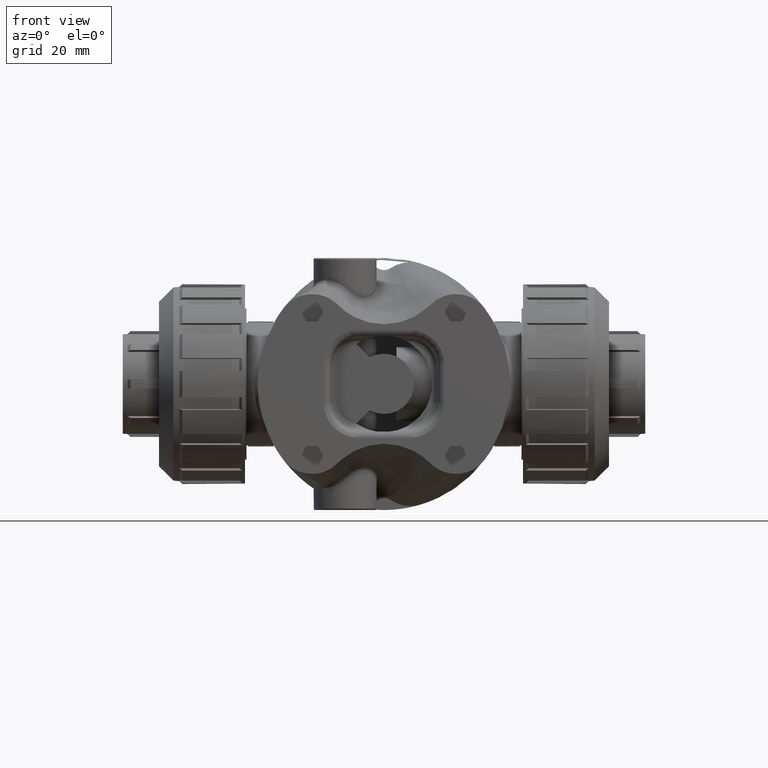
[diagram: clean part render]
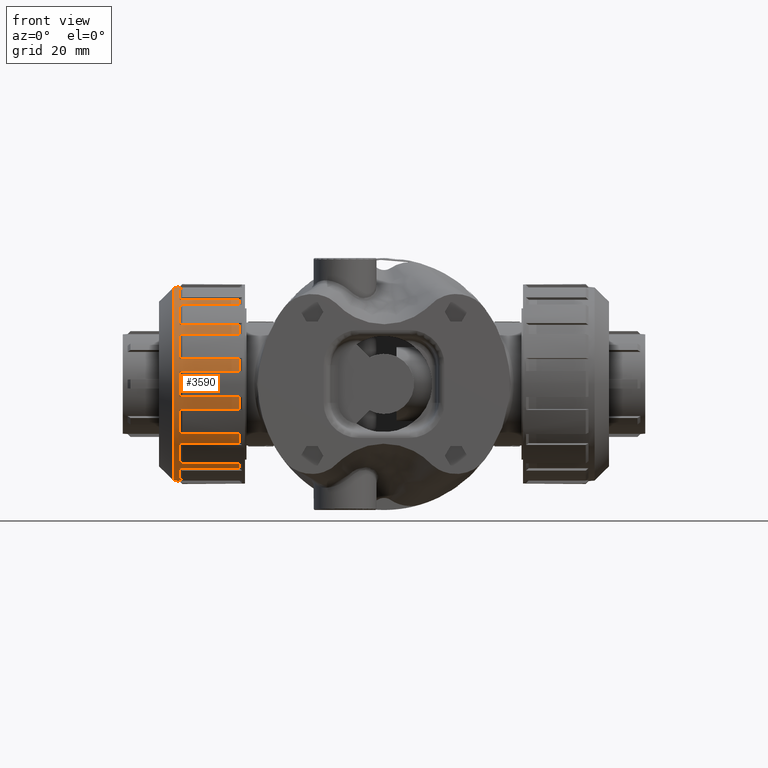
[diagram: same view with one face highlighted and labeled with its STEP entity id]
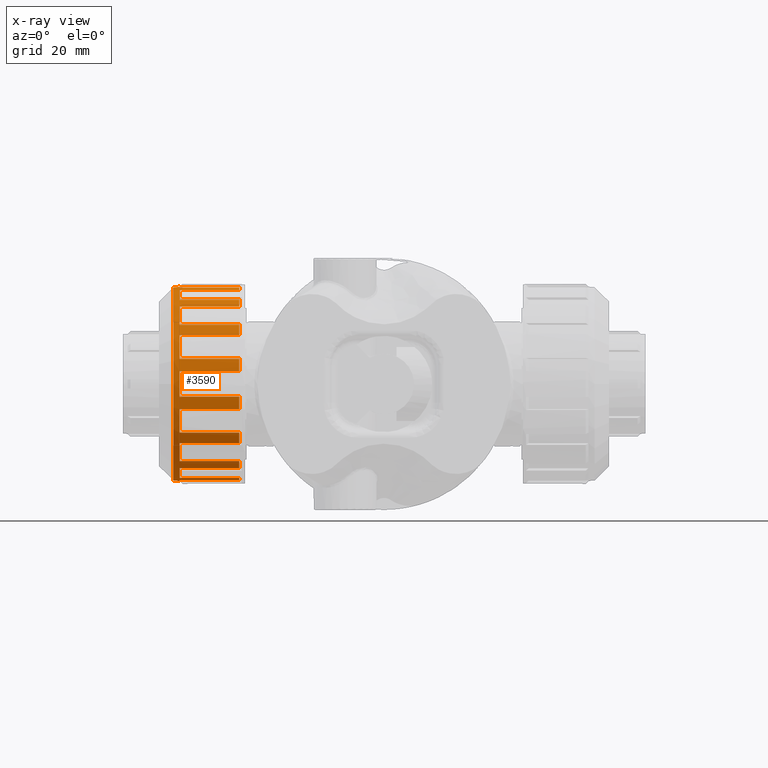
[diagram: x-ray of the same camera — body ghosted, the highlighted face saturated]
A machine part, front view. The second image highlights one B-rep face of the part: STEP entity #3590.
The next image is the same camera in x-ray: the body ghosted, the highlighted face saturated — about 0% of this face is hidden behind the body in this view.
In plain terms, the highlighted cylindrical surface (bore or boss wall) has radius 34.3154 mm, axis along (-1, -0, 0).
Its self-contained STEP definition (entity closure, byte-faithful):
#1392=CARTESIAN_POINT('',(-2.011169786684572,2.044500320512774,0.675332573794901));
#1393=VERTEX_POINT('',#1392);
#1408=CARTESIAN_POINT('',(-2.841169786684572,2.044500320512773,0.675332573794903));
#1409=VERTEX_POINT('',#1408);
#1416=CARTESIAN_POINT('',(-2.011169786684572,2.044500320512774,0.675332573794901));
#1417=DIRECTION('',(-1.0,0.0,0.0));
#1418=VECTOR('',#1417,0.830000000000000);
#1419=LINE('',#1416,#1418);
#1420=EDGE_CURVE('',#1393,#1409,#1419,.T.);
#1432=CARTESIAN_POINT('',(-2.841169786684572,2.179465791316530,0.349497103728409));
#1433=VERTEX_POINT('',#1432);
#1440=CARTESIAN_POINT('',(-2.841169786684572,0.874499999999999,-0.000167426205100));
#1441=DIRECTION('',(-1.0,0.0,0.0));
#1442=DIRECTION('',(0.0,1.0,0.0));
#1443=AXIS2_PLACEMENT_3D('',#1440,#1441,#1442);
#1444=CIRCLE('',#1443,1.351000000000000);
#1445=EDGE_CURVE('',#1409,#1433,#1444,.T.);
#1463=CARTESIAN_POINT('',(-2.011169786684572,2.179465791316530,0.349497103728407));
#1464=VERTEX_POINT('',#1463);
#1473=CARTESIAN_POINT('',(-2.841169786684572,2.179465791316530,0.349497103728409));
#1474=DIRECTION('',(1.0,0.0,0.0));
#1475=VECTOR('',#1474,0.830000000000000);
#1476=LINE('',#1473,#1475);
#1477=EDGE_CURVE('',#1433,#1464,#1476,.T.);
#1496=CARTESIAN_POINT('',(-2.011169786684570,1.696936690590777,1.071652936528360));
#1497=VERTEX_POINT('',#1496);
#1512=CARTESIAN_POINT('',(-2.841169786684570,1.696936690590777,1.071652936528362));
#1513=VERTEX_POINT('',#1512);
#1520=CARTESIAN_POINT('',(-2.011169786684570,1.696936690590778,1.071652936528359));
#1521=DIRECTION('',(-1.0,0.0,0.0));
#1522=VECTOR('',#1521,0.830000000000000);
#1523=LINE('',#1520,#1522);
#1524=EDGE_CURVE('',#1497,#1513,#1523,.T.);
#1536=CARTESIAN_POINT('',(-2.841169786684571,1.946320362733455,0.822269264385685));
#1537=VERTEX_POINT('',#1536);
#1544=CARTESIAN_POINT('',(-2.841169786684572,0.874499999999999,-0.000167426205100));
#1545=DIRECTION('',(-1.0,0.0,0.0));
#1546=DIRECTION('',(0.0,1.0,0.0));
#1547=AXIS2_PLACEMENT_3D('',#1544,#1545,#1546);
#1548=CIRCLE('',#1547,1.351000000000000);
#1549=EDGE_CURVE('',#1513,#1537,#1548,.T.);
#1567=CARTESIAN_POINT('',(-2.011169786684572,1.946320362733455,0.822269264385683));
#1568=VERTEX_POINT('',#1567);
#1577=CARTESIAN_POINT('',(-2.841169786684571,1.946320362733455,0.822269264385685));
#1578=DIRECTION('',(1.0,0.0,0.0));
#1579=VECTOR('',#1578,0.830000000000000);
#1580=LINE('',#1577,#1579);
#1581=EDGE_CURVE('',#1537,#1568,#1580,.T.);
#1600=CARTESIAN_POINT('',(-2.011169786684570,1.224164529933501,1.304798365111430));
#1601=VERTEX_POINT('',#1600);
#1616=CARTESIAN_POINT('',(-2.841169786684570,1.224164529933501,1.304798365111432));
#1617=VERTEX_POINT('',#1616);
#1624=CARTESIAN_POINT('',(-2.011169786684570,1.224164529933501,1.304798365111430));
#1625=DIRECTION('',(-1.0,0.0,0.0));
#1626=VECTOR('',#1625,0.830000000000000);
#1627=LINE('',#1624,#1626);
#1628=EDGE_CURVE('',#1601,#1617,#1627,.T.);
#1640=CARTESIAN_POINT('',(-2.841169786684570,1.549999999999995,1.169832894307679));
#1641=VERTEX_POINT('',#1640);
#1648=CARTESIAN_POINT('',(-2.841169786684572,0.874499999999999,-0.000167426205100));
#1649=DIRECTION('',(-1.0,0.0,0.0));
#1650=DIRECTION('',(0.0,1.0,0.0));
#1651=AXIS2_PLACEMENT_3D('',#1648,#1649,#1650);
#1652=CIRCLE('',#1651,1.351000000000000);
#1653=EDGE_CURVE('',#1617,#1641,#1652,.T.);
#1671=CARTESIAN_POINT('',(-2.011169786684570,1.549999999999996,1.169832894307676));
#1672=VERTEX_POINT('',#1671);
#1681=CARTESIAN_POINT('',(-2.841169786684570,1.549999999999995,1.169832894307678));
#1682=DIRECTION('',(1.0,0.0,0.0));
#1683=VECTOR('',#1682,0.830000000000000);
#1684=LINE('',#1681,#1683);
#1685=EDGE_CURVE('',#1641,#1672,#1684,.T.);
#1704=CARTESIAN_POINT('',(-2.011169786684570,0.698159114310705,1.339274581510915));
#1705=VERTEX_POINT('',#1704);
#1720=CARTESIAN_POINT('',(-2.841169786684570,0.698159114310705,1.339274581510917));
#1721=VERTEX_POINT('',#1720);
#1728=CARTESIAN_POINT('',(-2.011169786684570,0.698159114310705,1.339274581510915));
#1729=DIRECTION('',(-1.0,0.0,0.0));
#1730=VECTOR('',#1729,0.830000000000000);
#1731=LINE('',#1728,#1730);
#1732=EDGE_CURVE('',#1705,#1721,#1731,.T.);
#1744=CARTESIAN_POINT('',(-2.841169786684570,1.050840885689284,1.339274581510918));
#1745=VERTEX_POINT('',#1744);
#1752=CARTESIAN_POINT('',(-2.841169786684572,0.874499999999999,-0.000167426205100));
#1753=DIRECTION('',(-1.0,0.0,0.0));
#1754=DIRECTION('',(0.0,1.0,0.0));
#1755=AXIS2_PLACEMENT_3D('',#1752,#1753,#1754);
#1756=CIRCLE('',#1755,1.351000000000000);
#1757=EDGE_CURVE('',#1721,#1745,#1756,.T.);
#1775=CARTESIAN_POINT('',(-2.011169786684570,1.050840885689284,1.339274581510916));
#1776=VERTEX_POINT('',#1775);
#1785=CARTESIAN_POINT('',(-2.841169786684570,1.050840885689284,1.339274581510918));
#1786=DIRECTION('',(1.0,0.0,0.0));
#1787=VECTOR('',#1786,0.830000000000000);
#1788=LINE('',#1785,#1787);
#1789=EDGE_CURVE('',#1745,#1776,#1788,.T.);
#1808=CARTESIAN_POINT('',(-2.011169786684570,0.198999999999996,1.169832894307672));
#1809=VERTEX_POINT('',#1808);
#1824=CARTESIAN_POINT('',(-2.841169786684570,0.198999999999995,1.169832894307674));
#1825=VERTEX_POINT('',#1824);
#1832=CARTESIAN_POINT('',(-2.011169786684570,0.198999999999996,1.169832894307672));
#1833=DIRECTION('',(-1.0,0.0,0.0));
#1834=VECTOR('',#1833,0.830000000000000);
#1835=LINE('',#1832,#1834);
#1836=EDGE_CURVE('',#1809,#1825,#1835,.T.);
#1848=CARTESIAN_POINT('',(-2.841169786684570,0.524835470066489,1.304798365111430));
#1849=VERTEX_POINT('',#1848);
#1856=CARTESIAN_POINT('',(-2.841169786684572,0.874499999999999,-0.000167426205100));
#1857=DIRECTION('',(-1.0,0.0,0.0));
#1858=DIRECTION('',(0.0,1.0,0.0));
#1859=AXIS2_PLACEMENT_3D('',#1856,#1857,#1858);
#1860=CIRCLE('',#1859,1.351000000000000);
#1861=EDGE_CURVE('',#1825,#1849,#1860,.T.);
#1879=CARTESIAN_POINT('',(-2.011169786684570,0.524835470066490,1.304798365111428));
#1880=VERTEX_POINT('',#1879);
#1889=CARTESIAN_POINT('',(-2.841169786684570,0.524835470066489,1.304798365111429));
#1890=DIRECTION('',(1.0,0.0,0.0));
#1891=VECTOR('',#1890,0.830000000000000);
#1892=LINE('',#1889,#1891);
#1893=EDGE_CURVE('',#1849,#1880,#1892,.T.);
#1912=CARTESIAN_POINT('',(-2.011169786684570,-0.197320362733462,0.822269264385676));
#1913=VERTEX_POINT('',#1912);
#1928=CARTESIAN_POINT('',(-2.841169786684570,-0.197320362733462,0.822269264385678));
#1929=VERTEX_POINT('',#1928);
#1936=CARTESIAN_POINT('',(-2.011169786684570,-0.197320362733462,0.822269264385676));
#1937=DIRECTION('',(-1.0,0.0,0.0));
#1938=VECTOR('',#1937,0.830000000000000);
#1939=LINE('',#1936,#1938);
#1940=EDGE_CURVE('',#1913,#1929,#1939,.T.);
#1952=CARTESIAN_POINT('',(-2.841169786684570,0.052063309409214,1.071652936528356));
#1953=VERTEX_POINT('',#1952);
#1960=CARTESIAN_POINT('',(-2.841169786684572,0.874499999999999,-0.000167426205100));
#1961=DIRECTION('',(-1.0,0.0,0.0));
#1962=DIRECTION('',(0.0,1.0,0.0));
#1963=AXIS2_PLACEMENT_3D('',#1960,#1961,#1962);
#1964=CIRCLE('',#1963,1.351000000000000);
#1965=EDGE_CURVE('',#1929,#1953,#1964,.T.);
#1983=CARTESIAN_POINT('',(-2.011169786684570,0.052063309409215,1.071652936528354));
#1984=VERTEX_POINT('',#1983);
#1993=CARTESIAN_POINT('',(-2.841169786684570,0.052063309409215,1.071652936528356));
#1994=DIRECTION('',(1.0,0.0,0.0));
#1995=VECTOR('',#1994,0.830000000000000);
#1996=LINE('',#1993,#1995);
#1997=EDGE_CURVE('',#1953,#1984,#1996,.T.);
#2016=CARTESIAN_POINT('',(-2.011169786684572,-0.430465791316533,0.349497103728399));
#2017=VERTEX_POINT('',#2016);
#2032=CARTESIAN_POINT('',(-2.841169786684572,-0.430465791316533,0.349497103728401));
#2033=VERTEX_POINT('',#2032);
#2040=CARTESIAN_POINT('',(-2.011169786684572,-0.430465791316533,0.349497103728399));
#2041=DIRECTION('',(-1.0,0.0,0.0));
#2042=VECTOR('',#2041,0.830000000000000);
#2043=LINE('',#2040,#2042);
#2044=EDGE_CURVE('',#2017,#2033,#2043,.T.);
#2056=CARTESIAN_POINT('',(-2.841169786684571,-0.295500320512780,0.675332573794896));
#2057=VERTEX_POINT('',#2056);
#2064=CARTESIAN_POINT('',(-2.841169786684572,0.874499999999999,-0.000167426205100));
#2065=DIRECTION('',(-1.0,0.0,0.0));
#2066=DIRECTION('',(0.0,1.0,0.0));
#2067=AXIS2_PLACEMENT_3D('',#2064,#2065,#2066);
#2068=CIRCLE('',#2067,1.351000000000000);
#2069=EDGE_CURVE('',#2033,#2057,#2068,.T.);
#2087=CARTESIAN_POINT('',(-2.011169786684571,-0.295500320512779,0.675332573794894));
#2088=VERTEX_POINT('',#2087);
#2097=CARTESIAN_POINT('',(-2.841169786684571,-0.295500320512779,0.675332573794896));
#2098=DIRECTION('',(1.0,0.0,0.0));
#2099=VECTOR('',#2098,0.830000000000000);
#2100=LINE('',#2097,#2099);
#2101=EDGE_CURVE('',#2057,#2088,#2100,.T.);
#2120=CARTESIAN_POINT('',(-2.011169786684573,-0.464942007716017,-0.176508311894396));
#2121=VERTEX_POINT('',#2120);
#2136=CARTESIAN_POINT('',(-2.841169786684572,-0.464942007716018,-0.176508311894394));
#2137=VERTEX_POINT('',#2136);
#2144=CARTESIAN_POINT('',(-2.011169786684573,-0.464942007716017,-0.176508311894396));
#2145=DIRECTION('',(-1.0,0.0,0.0));
#2146=VECTOR('',#2145,0.830000000000000);
#2147=LINE('',#2144,#2146);
#2148=EDGE_CURVE('',#2121,#2137,#2147,.T.);
#2160=CARTESIAN_POINT('',(-2.841169786684572,-0.464942007716019,0.176173459484185));
#2161=VERTEX_POINT('',#2160);
#2168=CARTESIAN_POINT('',(-2.841169786684572,0.874499999999999,-0.000167426205100));
#2169=DIRECTION('',(-1.0,0.0,0.0));
#2170=DIRECTION('',(0.0,1.0,0.0));
#2171=AXIS2_PLACEMENT_3D('',#2168,#2169,#2170);
#2172=CIRCLE('',#2171,1.351000000000000);
#2173=EDGE_CURVE('',#2137,#2161,#2172,.T.);
#2191=CARTESIAN_POINT('',(-2.011169786684572,-0.464942007716019,0.176173459484183));
#2192=VERTEX_POINT('',#2191);
#2201=CARTESIAN_POINT('',(-2.841169786684572,-0.464942007716019,0.176173459484185));
#2202=DIRECTION('',(1.0,0.0,0.0));
#2203=VECTOR('',#2202,0.830000000000000);
#2204=LINE('',#2201,#2203);
#2205=EDGE_CURVE('',#2161,#2192,#2204,.T.);
#2224=CARTESIAN_POINT('',(-2.011169786684574,-0.295500320512775,-0.675667426205106));
#2225=VERTEX_POINT('',#2224);
#2240=CARTESIAN_POINT('',(-2.841169786684574,-0.295500320512775,-0.675667426205104));
#2241=VERTEX_POINT('',#2240);
#2248=CARTESIAN_POINT('',(-2.011169786684574,-0.295500320512775,-0.675667426205106));
#2249=DIRECTION('',(-1.0,0.0,0.0));
#2250=VECTOR('',#2249,0.830000000000000);
#2251=LINE('',#2248,#2250);
#2252=EDGE_CURVE('',#2225,#2241,#2251,.T.);
#2264=CARTESIAN_POINT('',(-2.841169786684573,-0.430465791316531,-0.349831956138610));
#2265=VERTEX_POINT('',#2264);
#2272=CARTESIAN_POINT('',(-2.841169786684572,0.874499999999999,-0.000167426205100));
#2273=DIRECTION('',(-1.0,0.0,0.0));
#2274=DIRECTION('',(0.0,1.0,0.0));
#2275=AXIS2_PLACEMENT_3D('',#2272,#2273,#2274);
#2276=CIRCLE('',#2275,1.351000000000000);
#2277=EDGE_CURVE('',#2241,#2265,#2276,.T.);
#2295=CARTESIAN_POINT('',(-2.011169786684573,-0.430465791316531,-0.349831956138612));
#2296=VERTEX_POINT('',#2295);
#2305=CARTESIAN_POINT('',(-2.841169786684573,-0.430465791316531,-0.349831956138610));
#2306=DIRECTION('',(1.0,0.0,0.0));
#2307=VECTOR('',#2306,0.830000000000000);
#2308=LINE('',#2305,#2307);
#2309=EDGE_CURVE('',#2265,#2296,#2308,.T.);
#2328=CARTESIAN_POINT('',(-2.011169786684575,0.052063309409222,-1.071987788938563));
#2329=VERTEX_POINT('',#2328);
#2344=CARTESIAN_POINT('',(-2.841169786684575,0.052063309409221,-1.071987788938562));
#2345=VERTEX_POINT('',#2344);
#2352=CARTESIAN_POINT('',(-2.011169786684575,0.052063309409222,-1.071987788938564));
#2353=DIRECTION('',(-1.0,0.0,0.0));
#2354=VECTOR('',#2353,0.830000000000000);
#2355=LINE('',#2352,#2354);
#2356=EDGE_CURVE('',#2329,#2345,#2355,.T.);
#2368=CARTESIAN_POINT('',(-2.841169786684574,-0.197320362733457,-0.822604116795886));
#2369=VERTEX_POINT('',#2368);
#2376=CARTESIAN_POINT('',(-2.841169786684572,0.874499999999999,-0.000167426205100));
#2377=DIRECTION('',(-1.0,0.0,0.0));
#2378=DIRECTION('',(0.0,1.0,0.0));
#2379=AXIS2_PLACEMENT_3D('',#2376,#2377,#2378);
#2380=CIRCLE('',#2379,1.351000000000000);
#2381=EDGE_CURVE('',#2345,#2369,#2380,.T.);
#2399=CARTESIAN_POINT('',(-2.011169786684575,-0.197320362733456,-0.822604116795887));
#2400=VERTEX_POINT('',#2399);
#2409=CARTESIAN_POINT('',(-2.841169786684574,-0.197320362733457,-0.822604116795885));
#2410=DIRECTION('',(1.0,0.0,0.0));
#2411=VECTOR('',#2410,0.830000000000000);
#2412=LINE('',#2409,#2411);
#2413=EDGE_CURVE('',#2369,#2400,#2412,.T.);
#2432=CARTESIAN_POINT('',(-2.011169786684576,0.524835470066498,-1.305133217521634));
#2433=VERTEX_POINT('',#2432);
#2448=CARTESIAN_POINT('',(-2.841169786684575,0.524835470066497,-1.305133217521633));
#2449=VERTEX_POINT('',#2448);
#2456=CARTESIAN_POINT('',(-2.011169786684576,0.524835470066498,-1.305133217521635));
#2457=DIRECTION('',(-1.0,0.0,0.0));
#2458=VECTOR('',#2457,0.830000000000000);
#2459=LINE('',#2456,#2458);
#2460=EDGE_CURVE('',#2433,#2449,#2459,.T.);
#2472=CARTESIAN_POINT('',(-2.841169786684575,0.199000000000003,-1.170167746717879));
#2473=VERTEX_POINT('',#2472);
#2480=CARTESIAN_POINT('',(-2.841169786684572,0.874499999999999,-0.000167426205100));
#2481=DIRECTION('',(-1.0,0.0,0.0));
#2482=DIRECTION('',(0.0,1.0,0.0));
#2483=AXIS2_PLACEMENT_3D('',#2480,#2481,#2482);
#2484=CIRCLE('',#2483,1.351000000000000);
#2485=EDGE_CURVE('',#2449,#2473,#2484,.T.);
#2503=CARTESIAN_POINT('',(-2.011169786684575,0.199000000000003,-1.170167746717881));
#2504=VERTEX_POINT('',#2503);
#2513=CARTESIAN_POINT('',(-2.841169786684575,0.199000000000003,-1.170167746717879));
#2514=DIRECTION('',(1.0,0.0,0.0));
#2515=VECTOR('',#2514,0.830000000000000);
#2516=LINE('',#2513,#2515);
#2517=EDGE_CURVE('',#2473,#2504,#2516,.T.);
#2536=CARTESIAN_POINT('',(-2.011169786684576,1.050840885689293,-1.339609433921120));
#2537=VERTEX_POINT('',#2536);
#2552=CARTESIAN_POINT('',(-2.841169786684576,1.050840885689293,-1.339609433921118));
#2553=VERTEX_POINT('',#2552);
#2560=CARTESIAN_POINT('',(-2.011169786684576,1.050840885689293,-1.339609433921120));
#2561=DIRECTION('',(-1.0,0.0,0.0));
#2562=VECTOR('',#2561,0.830000000000000);
#2563=LINE('',#2560,#2562);
#2564=EDGE_CURVE('',#2537,#2553,#2563,.T.);
#2576=CARTESIAN_POINT('',(-2.841169786684576,0.698159114310714,-1.339609433921119));
#2577=VERTEX_POINT('',#2576);
#2584=CARTESIAN_POINT('',(-2.841169786684572,0.874499999999999,-0.000167426205100));
#2585=DIRECTION('',(-1.0,0.0,0.0));
#2586=DIRECTION('',(0.0,1.0,0.0));
#2587=AXIS2_PLACEMENT_3D('',#2584,#2585,#2586);
#2588=CIRCLE('',#2587,1.351000000000000);
#2589=EDGE_CURVE('',#2553,#2577,#2588,.T.);
#2607=CARTESIAN_POINT('',(-2.011169786684576,0.698159114310714,-1.339609433921121));
#2608=VERTEX_POINT('',#2607);
#2617=CARTESIAN_POINT('',(-2.841169786684576,0.698159114310714,-1.339609433921119));
#2618=DIRECTION('',(1.0,0.0,0.0));
#2619=VECTOR('',#2618,0.830000000000001);
#2620=LINE('',#2617,#2619);
#2621=EDGE_CURVE('',#2577,#2608,#2620,.T.);
#2640=CARTESIAN_POINT('',(-2.011169786684576,1.550000000000003,-1.170167746717877));
#2641=VERTEX_POINT('',#2640);
#2656=CARTESIAN_POINT('',(-2.841169786684576,1.550000000000003,-1.170167746717875));
#2657=VERTEX_POINT('',#2656);
#2664=CARTESIAN_POINT('',(-2.011169786684576,1.550000000000003,-1.170167746717877));
#2665=DIRECTION('',(-1.0,0.0,0.0));
#2666=VECTOR('',#2665,0.830000000000000);
#2667=LINE('',#2664,#2666);
#2668=EDGE_CURVE('',#2641,#2657,#2667,.T.);
#2680=CARTESIAN_POINT('',(-2.841169786684576,1.224164529933509,-1.305133217521631));
#2681=VERTEX_POINT('',#2680);
#2688=CARTESIAN_POINT('',(-2.841169786684572,0.874499999999999,-0.000167426205100));
#2689=DIRECTION('',(-1.0,0.0,0.0));
#2690=DIRECTION('',(0.0,1.0,0.0));
#2691=AXIS2_PLACEMENT_3D('',#2688,#2689,#2690);
#2692=CIRCLE('',#2691,1.351000000000000);
#2693=EDGE_CURVE('',#2657,#2681,#2692,.T.);
#2711=CARTESIAN_POINT('',(-2.011169786684576,1.224164529933509,-1.305133217521633));
#2712=VERTEX_POINT('',#2711);
#2721=CARTESIAN_POINT('',(-2.841169786684576,1.224164529933509,-1.305133217521630));
#2722=DIRECTION('',(1.0,0.0,0.0));
#2723=VECTOR('',#2722,0.830000000000000);
#2724=LINE('',#2721,#2723);
#2725=EDGE_CURVE('',#2681,#2712,#2724,.T.);
#2744=CARTESIAN_POINT('',(-2.011169786684575,1.946320362733461,-0.822604116795881));
#2745=VERTEX_POINT('',#2744);
#2760=CARTESIAN_POINT('',(-2.841169786684575,1.946320362733460,-0.822604116795879));
#2761=VERTEX_POINT('',#2760);
#2768=CARTESIAN_POINT('',(-2.011169786684575,1.946320362733461,-0.822604116795881));
#2769=DIRECTION('',(-1.0,0.0,0.0));
#2770=VECTOR('',#2769,0.830000000000000);
#2771=LINE('',#2768,#2770);
#2772=EDGE_CURVE('',#2745,#2761,#2771,.T.);
#2784=CARTESIAN_POINT('',(-2.841169786684575,1.696936690590784,-1.071987788938557));
#2785=VERTEX_POINT('',#2784);
#2792=CARTESIAN_POINT('',(-2.841169786684572,0.874499999999999,-0.000167426205100));
#2793=DIRECTION('',(-1.0,0.0,0.0));
#2794=DIRECTION('',(0.0,1.0,0.0));
#2795=AXIS2_PLACEMENT_3D('',#2792,#2793,#2794);
#2796=CIRCLE('',#2795,1.351000000000000);
#2797=EDGE_CURVE('',#2761,#2785,#2796,.T.);
#2815=CARTESIAN_POINT('',(-2.011169786684576,1.696936690590784,-1.071987788938559));
#2816=VERTEX_POINT('',#2815);
#2825=CARTESIAN_POINT('',(-2.841169786684575,1.696936690590784,-1.071987788938557));
#2826=DIRECTION('',(1.0,0.0,0.0));
#2827=VECTOR('',#2826,0.830000000000000);
#2828=LINE('',#2825,#2827);
#2829=EDGE_CURVE('',#2785,#2816,#2828,.T.);
#2848=CARTESIAN_POINT('',(-2.011169786684574,2.179465791316531,-0.349831956138604));
#2849=VERTEX_POINT('',#2848);
#2864=CARTESIAN_POINT('',(-2.841169786684574,2.179465791316531,-0.349831956138603));
#2865=VERTEX_POINT('',#2864);
#2872=CARTESIAN_POINT('',(-2.011169786684574,2.179465791316531,-0.349831956138604));
#2873=DIRECTION('',(-1.0,0.0,0.0));
#2874=VECTOR('',#2873,0.830000000000000);
#2875=LINE('',#2872,#2874);
#2876=EDGE_CURVE('',#2849,#2865,#2875,.T.);
#2888=CARTESIAN_POINT('',(-2.841169786684575,2.044500320512778,-0.675667426205097));
#2889=VERTEX_POINT('',#2888);
#2896=CARTESIAN_POINT('',(-2.841169786684572,0.874499999999999,-0.000167426205100));
#2897=DIRECTION('',(-1.0,0.0,0.0));
#2898=DIRECTION('',(0.0,1.0,0.0));
#2899=AXIS2_PLACEMENT_3D('',#2896,#2897,#2898);
#2900=CIRCLE('',#2899,1.351000000000000);
#2901=EDGE_CURVE('',#2865,#2889,#2900,.T.);
#2919=CARTESIAN_POINT('',(-2.011169786684575,2.044500320512778,-0.675667426205099));
#2920=VERTEX_POINT('',#2919);
#2929=CARTESIAN_POINT('',(-2.841169786684575,2.044500320512778,-0.675667426205097));
#2930=DIRECTION('',(1.0,0.0,0.0));
#2931=VECTOR('',#2930,0.830000000000000);
#2932=LINE('',#2929,#2931);
#2933=EDGE_CURVE('',#2889,#2920,#2932,.T.);
#2951=CARTESIAN_POINT('',(-2.011169786684573,2.213942007716018,-0.176508311894388));
#2952=VERTEX_POINT('',#2951);
#2953=CARTESIAN_POINT('',(-2.011169786684573,0.874500000000000,-0.000167426205102));
#2954=DIRECTION('',(-1.0,0.0,0.0));
#2955=DIRECTION('',(0.0,1.0,0.0));
#2956=AXIS2_PLACEMENT_3D('',#2953,#2954,#2955);
#2957=CIRCLE('',#2956,1.351000000000000);
#2958=EDGE_CURVE('',#2952,#2849,#2957,.T.);
#2984=CARTESIAN_POINT('',(-2.011169786684573,0.874500000000000,-0.000167426205102));
#2985=DIRECTION('',(-1.0,0.0,0.0));
#2986=DIRECTION('',(0.0,1.0,0.0));
#2987=AXIS2_PLACEMENT_3D('',#2984,#2985,#2986);
#2988=CIRCLE('',#2987,1.351000000000000);
#2989=EDGE_CURVE('',#2920,#2745,#2988,.T.);
#3008=CARTESIAN_POINT('',(-2.011169786684573,0.874500000000000,-0.000167426205102));
#3009=DIRECTION('',(-1.0,0.0,0.0));
#3010=DIRECTION('',(0.0,1.0,0.0));
#3011=AXIS2_PLACEMENT_3D('',#3008,#3009,#3010);
#3012=CIRCLE('',#3011,1.351000000000000);
#3013=EDGE_CURVE('',#2816,#2641,#3012,.T.);
#3032=CARTESIAN_POINT('',(-2.011169786684573,0.874500000000000,-0.000167426205102));
#3033=DIRECTION('',(-1.0,0.0,0.0));
#3034=DIRECTION('',(0.0,1.0,0.0));
#3035=AXIS2_PLACEMENT_3D('',#3032,#3033,#3034);
#3036=CIRCLE('',#3035,1.351000000000000);
#3037=EDGE_CURVE('',#2712,#2537,#3036,.T.);
#3056=CARTESIAN_POINT('',(-2.011169786684573,0.874500000000000,-0.000167426205102));
#3057=DIRECTION('',(-1.0,0.0,0.0));
#3058=DIRECTION('',(0.0,1.0,0.0));
#3059=AXIS2_PLACEMENT_3D('',#3056,#3057,#3058);
#3060=CIRCLE('',#3059,1.351000000000000);
#3061=EDGE_CURVE('',#2608,#2433,#3060,.T.);
#3080=CARTESIAN_POINT('',(-2.011169786684573,0.874500000000000,-0.000167426205102));
#3081=DIRECTION('',(-1.0,0.0,0.0));
#3082=DIRECTION('',(0.0,1.0,0.0));
#3083=AXIS2_PLACEMENT_3D('',#3080,#3081,#3082);
#3084=CIRCLE('',#3083,1.351000000000000);
#3085=EDGE_CURVE('',#2504,#2329,#3084,.T.);
#3104=CARTESIAN_POINT('',(-2.011169786684573,0.874500000000000,-0.000167426205102));
#3105=DIRECTION('',(-1.0,0.0,0.0));
#3106=DIRECTION('',(0.0,1.0,0.0));
#3107=AXIS2_PLACEMENT_3D('',#3104,#3105,#3106);
#3108=CIRCLE('',#3107,1.351000000000000);
#3109=EDGE_CURVE('',#2400,#2225,#3108,.T.);
#3128=CARTESIAN_POINT('',(-2.011169786684573,0.874500000000000,-0.000167426205102));
#3129=DIRECTION('',(-1.0,0.0,0.0));
#3130=DIRECTION('',(0.0,1.0,0.0));
#3131=AXIS2_PLACEMENT_3D('',#3128,#3129,#3130);
#3132=CIRCLE('',#3131,1.351000000000000);
#3133=EDGE_CURVE('',#2296,#2121,#3132,.T.);
#3152=CARTESIAN_POINT('',(-2.011169786684573,0.874500000000000,-0.000167426205102));
#3153=DIRECTION('',(-1.0,0.0,0.0));
#3154=DIRECTION('',(0.0,1.0,0.0));
#3155=AXIS2_PLACEMENT_3D('',#3152,#3153,#3154);
#3156=CIRCLE('',#3155,1.351000000000000);
#3157=EDGE_CURVE('',#2192,#2017,#3156,.T.);
#3176=CARTESIAN_POINT('',(-2.011169786684573,0.874500000000000,-0.000167426205102));
#3177=DIRECTION('',(-1.0,0.0,0.0));
#3178=DIRECTION('',(0.0,1.0,0.0));
#3179=AXIS2_PLACEMENT_3D('',#3176,#3177,#3178);
#3180=CIRCLE('',#3179,1.351000000000000);
#3181=EDGE_CURVE('',#2088,#1913,#3180,.T.);
#3200=CARTESIAN_POINT('',(-2.011169786684573,0.874500000000000,-0.000167426205102));
#3201=DIRECTION('',(-1.0,0.0,0.0));
#3202=DIRECTION('',(0.0,1.0,0.0));
#3203=AXIS2_PLACEMENT_3D('',#3200,#3201,#3202);
#3204=CIRCLE('',#3203,1.351000000000000);
#3205=EDGE_CURVE('',#1984,#1809,#3204,.T.);
#3224=CARTESIAN_POINT('',(-2.011169786684573,0.874500000000000,-0.000167426205102));
#3225=DIRECTION('',(-1.0,0.0,0.0));
#3226=DIRECTION('',(0.0,1.0,0.0));
#3227=AXIS2_PLACEMENT_3D('',#3224,#3225,#3226);
#3228=CIRCLE('',#3227,1.351000000000000);
#3229=EDGE_CURVE('',#1880,#1705,#3228,.T.);
#3248=CARTESIAN_POINT('',(-2.011169786684573,0.874500000000000,-0.000167426205102));
#3249=DIRECTION('',(-1.0,0.0,0.0));
#3250=DIRECTION('',(0.0,1.0,0.0));
#3251=AXIS2_PLACEMENT_3D('',#3248,#3249,#3250);
#3252=CIRCLE('',#3251,1.351000000000000);
#3253=EDGE_CURVE('',#1776,#1601,#3252,.T.);
#3272=CARTESIAN_POINT('',(-2.011169786684573,0.874500000000000,-0.000167426205102));
#3273=DIRECTION('',(-1.0,0.0,0.0));
#3274=DIRECTION('',(0.0,1.0,0.0));
#3275=AXIS2_PLACEMENT_3D('',#3272,#3273,#3274);
#3276=CIRCLE('',#3275,1.351000000000000);
#3277=EDGE_CURVE('',#1672,#1497,#3276,.T.);
#3296=CARTESIAN_POINT('',(-2.011169786684573,0.874500000000000,-0.000167426205102));
#3297=DIRECTION('',(-1.0,0.0,0.0));
#3298=DIRECTION('',(0.0,1.0,0.0));
#3299=AXIS2_PLACEMENT_3D('',#3296,#3297,#3298);
#3300=CIRCLE('',#3299,1.351000000000000);
#3301=EDGE_CURVE('',#1568,#1393,#3300,.T.);
#3329=CARTESIAN_POINT('',(-2.011169786684573,2.213942007716017,0.176173459484191));
#3330=VERTEX_POINT('',#3329);
#3337=CARTESIAN_POINT('',(-2.011169786684573,0.874500000000000,-0.000167426205102));
#3338=DIRECTION('',(-1.0,0.0,0.0));
#3339=DIRECTION('',(0.0,1.0,0.0));
#3340=AXIS2_PLACEMENT_3D('',#3337,#3338,#3339);
#3341=CIRCLE('',#3340,1.351000000000000);
#3342=EDGE_CURVE('',#1464,#3330,#3341,.T.);
#3447=CARTESIAN_POINT('',(-2.841169786684573,2.213942007716018,-0.176508311894387));
#3448=VERTEX_POINT('',#3447);
#3455=CARTESIAN_POINT('',(-2.841169786684572,2.213942007716017,0.176173459484193));
#3456=VERTEX_POINT('',#3455);
#3457=CARTESIAN_POINT('',(-2.841169786684572,0.874499999999999,-0.000167426205100));
#3458=DIRECTION('',(-1.0,0.0,0.0));
#3459=DIRECTION('',(0.0,1.0,0.0));
#3460=AXIS2_PLACEMENT_3D('',#3457,#3458,#3459);
#3461=CIRCLE('',#3460,1.351000000000000);
#3462=EDGE_CURVE('',#3456,#3448,#3461,.T.);
#3480=CARTESIAN_POINT('',(-2.011169786684573,2.213942007716017,0.176173459484191));
#3481=DIRECTION('',(-1.0,0.0,0.0));
#3482=VECTOR('',#3481,0.830000000000000);
#3483=LINE('',#3480,#3482);
#3484=EDGE_CURVE('',#3330,#3456,#3483,.T.);
#3499=CARTESIAN_POINT('',(-2.841169786684573,2.213942007716018,-0.176508311894387));
#3500=DIRECTION('',(1.0,0.0,0.0));
#3501=VECTOR('',#3500,0.830000000000000);
#3502=LINE('',#3499,#3501);
#3503=EDGE_CURVE('',#3448,#2952,#3502,.T.);
#3508=CARTESIAN_POINT('',(-2.568669786684573,0.874500000000000,-0.000167426205101));
#3509=DIRECTION('',(-1.0,-3.135642E-016,2.319214E-015));
#3510=DIRECTION('',(0.0,1.0,0.0));
#3511=AXIS2_PLACEMENT_3D('',#3508,#3509,#3510);
#3512=CYLINDRICAL_SURFACE('',#3511,1.351000000000000);
#3513=ORIENTED_EDGE('',*,*,#1477,.T.);
#3514=ORIENTED_EDGE('',*,*,#3342,.T.);
#3515=ORIENTED_EDGE('',*,*,#3484,.T.);
#3516=ORIENTED_EDGE('',*,*,#3462,.T.);
#3517=ORIENTED_EDGE('',*,*,#3503,.T.);
#3518=ORIENTED_EDGE('',*,*,#2958,.T.);
#3519=ORIENTED_EDGE('',*,*,#2876,.T.);
#3520=ORIENTED_EDGE('',*,*,#2901,.T.);
#3521=ORIENTED_EDGE('',*,*,#2933,.T.);
#3522=ORIENTED_EDGE('',*,*,#2989,.T.);
#3523=ORIENTED_EDGE('',*,*,#2772,.T.);
#3524=ORIENTED_EDGE('',*,*,#2797,.T.);
#3525=ORIENTED_EDGE('',*,*,#2829,.T.);
#3526=ORIENTED_EDGE('',*,*,#3013,.T.);
#3527=ORIENTED_EDGE('',*,*,#2668,.T.);
#3528=ORIENTED_EDGE('',*,*,#2693,.T.);
#3529=ORIENTED_EDGE('',*,*,#2725,.T.);
#3530=ORIENTED_EDGE('',*,*,#3037,.T.);
#3531=ORIENTED_EDGE('',*,*,#2564,.T.);
#3532=ORIENTED_EDGE('',*,*,#2589,.T.);
#3533=ORIENTED_EDGE('',*,*,#2621,.T.);
#3534=ORIENTED_EDGE('',*,*,#3061,.T.);
#3535=ORIENTED_EDGE('',*,*,#2460,.T.);
#3536=ORIENTED_EDGE('',*,*,#2485,.T.);
#3537=ORIENTED_EDGE('',*,*,#2517,.T.);
#3538=ORIENTED_EDGE('',*,*,#3085,.T.);
#3539=ORIENTED_EDGE('',*,*,#2356,.T.);
#3540=ORIENTED_EDGE('',*,*,#2381,.T.);
#3541=ORIENTED_EDGE('',*,*,#2413,.T.);
#3542=ORIENTED_EDGE('',*,*,#3109,.T.);
#3543=ORIENTED_EDGE('',*,*,#2252,.T.);
#3544=ORIENTED_EDGE('',*,*,#2277,.T.);
#3545=ORIENTED_EDGE('',*,*,#2309,.T.);
#3546=ORIENTED_EDGE('',*,*,#3133,.T.);
#3547=ORIENTED_EDGE('',*,*,#2148,.T.);
#3548=ORIENTED_EDGE('',*,*,#2173,.T.);
#3549=ORIENTED_EDGE('',*,*,#2205,.T.);
#3550=ORIENTED_EDGE('',*,*,#3157,.T.);
#3551=ORIENTED_EDGE('',*,*,#2044,.T.);
#3552=ORIENTED_EDGE('',*,*,#2069,.T.);
#3553=ORIENTED_EDGE('',*,*,#2101,.T.);
#3554=ORIENTED_EDGE('',*,*,#3181,.T.);
#3555=ORIENTED_EDGE('',*,*,#1940,.T.);
#3556=ORIENTED_EDGE('',*,*,#1965,.T.);
#3557=ORIENTED_EDGE('',*,*,#1997,.T.);
#3558=ORIENTED_EDGE('',*,*,#3205,.T.);
#3559=ORIENTED_EDGE('',*,*,#1836,.T.);
#3560=ORIENTED_EDGE('',*,*,#1861,.T.);
#3561=ORIENTED_EDGE('',*,*,#1893,.T.);
#3562=ORIENTED_EDGE('',*,*,#3229,.T.);
#3563=ORIENTED_EDGE('',*,*,#1732,.T.);
#3564=ORIENTED_EDGE('',*,*,#1757,.T.);
#3565=ORIENTED_EDGE('',*,*,#1789,.T.);
#3566=ORIENTED_EDGE('',*,*,#3253,.T.);
#3567=ORIENTED_EDGE('',*,*,#1628,.T.);
#3568=ORIENTED_EDGE('',*,*,#1653,.T.);
#3569=ORIENTED_EDGE('',*,*,#1685,.T.);
#3570=ORIENTED_EDGE('',*,*,#3277,.T.);
#3571=ORIENTED_EDGE('',*,*,#1524,.T.);
#3572=ORIENTED_EDGE('',*,*,#1549,.T.);
#3573=ORIENTED_EDGE('',*,*,#1581,.T.);
#3574=ORIENTED_EDGE('',*,*,#3301,.T.);
#3575=ORIENTED_EDGE('',*,*,#1420,.T.);
#3576=ORIENTED_EDGE('',*,*,#1445,.T.);
#3577=EDGE_LOOP('',(#3513,#3514,#3515,#3516,#3517,#3518,#3519,#3520,#3521,#3522,#3523,#3524,#3525,#3526,#3527,#3528,#3529,#3530,#3531,#3532,#3533,#3534,#3535,#3536,#3537,#3538,#3539,#3540,#3541,#3542,#3543,#3544,#3545,#3546,#3547,#3548,#3549,#3550,#3551,#3552,#3553,#3554,#3555,#3556,#3557,#3558,#3559,#3560,#3561,#3562,#3563,#3564,#3565,#3566,#3567,#3568,#3569,#3570,#3571,#3572,#3573,#3574,#3575,#3576));
#3578=FACE_OUTER_BOUND('',#3577,.T.);
#3579=CARTESIAN_POINT('',(-2.926169786684573,2.225499999999999,-0.000167426205097));
#3580=VERTEX_POINT('',#3579);
#3581=CARTESIAN_POINT('',(-2.926169786684573,0.874499999999999,-0.000167426205100));
#3582=DIRECTION('',(-1.0,0.0,0.0));
#3583=DIRECTION('',(0.0,-1.0,0.0));
#3584=AXIS2_PLACEMENT_3D('',#3581,#3582,#3583);
#3585=CIRCLE('',#3584,1.351000000000000);
#3586=EDGE_CURVE('',#3580,#3580,#3585,.T.);
#3587=ORIENTED_EDGE('',*,*,#3586,.F.);
#3588=EDGE_LOOP('',(#3587));
#3589=FACE_BOUND('',#3588,.T.);
#3590=ADVANCED_FACE('',(#3578,#3589),#3512,.T.);